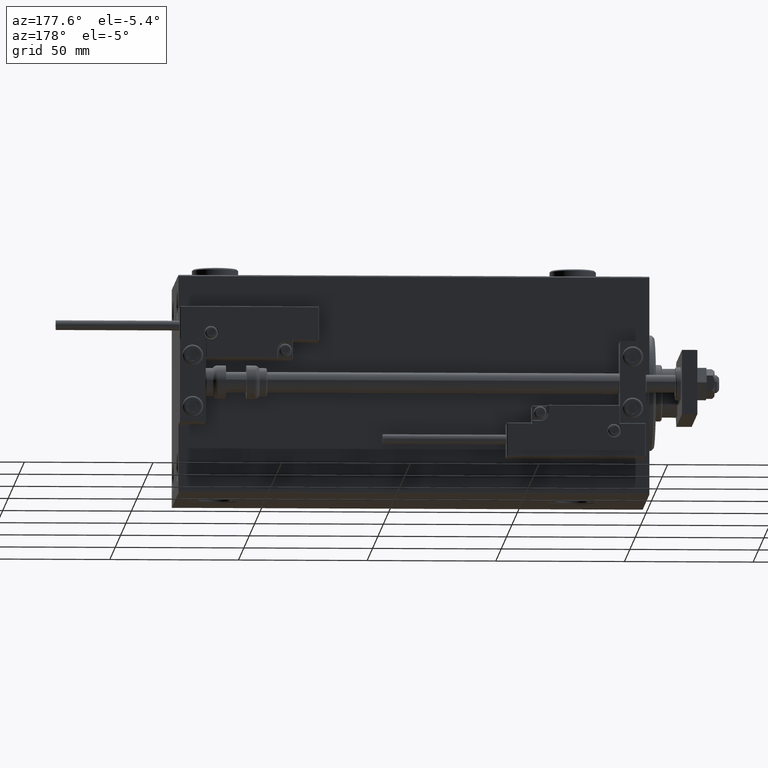
[diagram: clean part render]
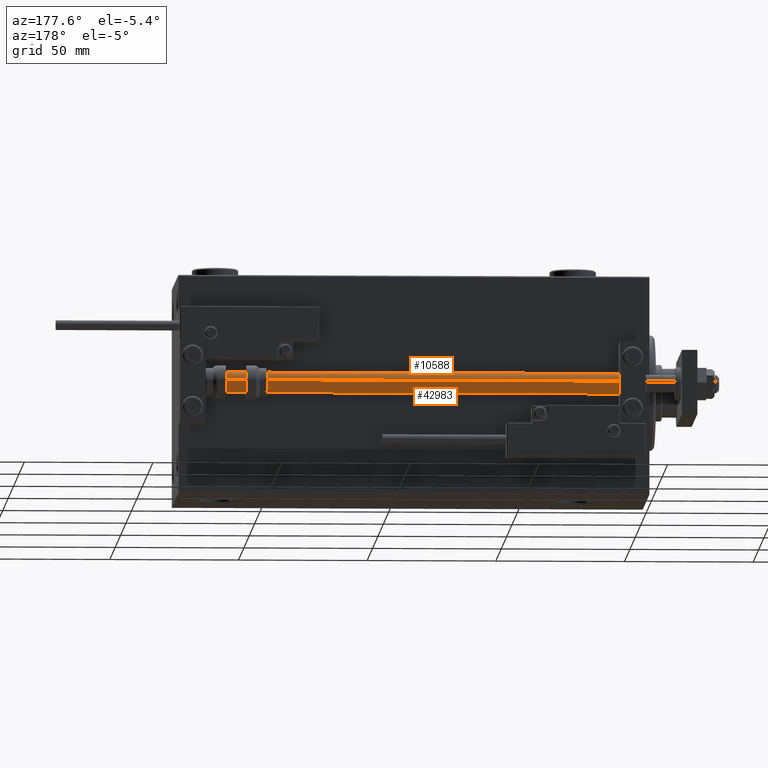
[diagram: same view with one multi-face feature highlighted, each face labeled with its STEP entity id]
A machine part, auxiliary view. The highlighted faces form ONE feature: a constant-radius fillet chain: 2 tangent blend faces with common blend radius 4 mm. The faces share edges in the B-rep.
Their STEP definitions:
[1] entity #42983 (Cylinder):
#3770 = DIRECTION ( 'NONE',  ( -1.000000000000000000, 0.000000000000000000, 0.000000000000000000 ) ) ;
#4261 = DIRECTION ( 'NONE',  ( 0.000000000000000000, 0.000000000000000000, 1.000000000000000000 ) ) ;
#4809 = DIRECTION ( 'NONE',  ( -0.000000000000000000, -0.000000000000000000, -1.000000000000000000 ) ) ;
#8488 = CARTESIAN_POINT ( 'NONE',  ( 4.000000000000000000, 4.898587196589412829E-16, 2.000000000000029310 ) ) ;
#8984 = EDGE_CURVE ( 'NONE', #44692, #36020, #20289, .T. ) ;
#10331 = CIRCLE ( 'NONE', #45137, 4.000000000000000000 ) ;
#10428 = CARTESIAN_POINT ( 'NONE',  ( -4.000000000000000000, 0.000000000000000000, 2.000000000000029310 ) ) ;
#14915 = LINE ( 'NONE', #31094, #18881 ) ;
#15468 = EDGE_CURVE ( 'NONE', #44692, #29301, #14915, .T. ) ;
#15799 = ORIENTED_EDGE ( 'NONE', *, *, #45083, .T. ) ;
#16457 = ORIENTED_EDGE ( 'NONE', *, *, #8984, .F. ) ;
#17979 = ORIENTED_EDGE ( 'NONE', *, *, #15468, .T. ) ;
#18557 = DIRECTION ( 'NONE',  ( 1.000000000000000000, 0.000000000000000000, 0.000000000000000000 ) ) ;
#18881 = VECTOR ( 'NONE', #28148, 1000.000000000000000 ) ;
#20289 = CIRCLE ( 'NONE', #26216, 4.000000000000000000 ) ;
#22492 = CARTESIAN_POINT ( 'NONE',  ( 4.000000000000000000, 4.898587196589412829E-16, 183.0000000000000000 ) ) ;
#23693 = EDGE_LOOP ( 'NONE', ( #39508, #16457, #17979, #15799 ) ) ;
#26216 = AXIS2_PLACEMENT_3D ( 'NONE', #28425, #4261, #52108 ) ;
#26338 = AXIS2_PLACEMENT_3D ( 'NONE', #41197, #4809, #3770 ) ;
#28148 = DIRECTION ( 'NONE',  ( -0.000000000000000000, -0.000000000000000000, -1.000000000000000000 ) ) ;
#28425 = CARTESIAN_POINT ( 'NONE',  ( 0.000000000000000000, 0.000000000000000000, 183.0000000000000000 ) ) ;
#28976 = FACE_OUTER_BOUND ( 'NONE', #23693, .T. ) ;
#29301 = VERTEX_POINT ( 'NONE', #10428 ) ;
#31094 = CARTESIAN_POINT ( 'NONE',  ( -4.000000000000000000, 0.000000000000000000, 183.0000000000000000 ) ) ;
#33489 = VERTEX_POINT ( 'NONE', #8488 ) ;
#34971 = DIRECTION ( 'NONE',  ( -0.000000000000000000, -0.000000000000000000, -1.000000000000000000 ) ) ;
#36020 = VERTEX_POINT ( 'NONE', #51689 ) ;
#36427 = CYLINDRICAL_SURFACE ( 'NONE', #26338, 4.000000000000000000 ) ;
#38734 = CARTESIAN_POINT ( 'NONE',  ( 0.000000000000000000, 0.000000000000000000, 2.000000000000029310 ) ) ;
#39508 = ORIENTED_EDGE ( 'NONE', *, *, #42185, .F. ) ;
#41197 = CARTESIAN_POINT ( 'NONE',  ( 0.000000000000000000, 0.000000000000000000, 183.0000000000000000 ) ) ;
#42185 = EDGE_CURVE ( 'NONE', #36020, #33489, #42690, .T. ) ;
#42690 = LINE ( 'NONE', #22492, #49244 ) ;
#42983 = ADVANCED_FACE ( 'NONE', ( #28976 ), #36427, .T. ) ;
#44692 = VERTEX_POINT ( 'NONE', #49018 ) ;
#45083 = EDGE_CURVE ( 'NONE', #29301, #33489, #10331, .T. ) ;
#45137 = AXIS2_PLACEMENT_3D ( 'NONE', #38734, #46216, #18557 ) ;
#46216 = DIRECTION ( 'NONE',  ( -0.000000000000000000, -0.000000000000000000, 1.000000000000000000 ) ) ;
#49018 = CARTESIAN_POINT ( 'NONE',  ( -4.000000000000000000, 0.000000000000000000, 183.0000000000000000 ) ) ;
#49244 = VECTOR ( 'NONE', #34971, 1000.000000000000000 ) ;
#51689 = CARTESIAN_POINT ( 'NONE',  ( 4.000000000000000000, 4.898587196589412829E-16, 183.0000000000000000 ) ) ;
#52108 = DIRECTION ( 'NONE',  ( 1.000000000000000000, 0.000000000000000000, 0.000000000000000000 ) ) ;
[2] entity #10588 (Cylinder):
#454 = EDGE_CURVE ( 'NONE', #36020, #44692, #38722, .T. ) ;
#2329 = DIRECTION ( 'NONE',  ( -0.000000000000000000, -0.000000000000000000, 1.000000000000000000 ) ) ;
#2453 = DIRECTION ( 'NONE',  ( 0.000000000000000000, 0.000000000000000000, 1.000000000000000000 ) ) ;
#6035 = DIRECTION ( 'NONE',  ( -0.000000000000000000, -0.000000000000000000, -1.000000000000000000 ) ) ;
#8488 = CARTESIAN_POINT ( 'NONE',  ( 4.000000000000000000, 4.898587196589412829E-16, 2.000000000000029310 ) ) ;
#10428 = CARTESIAN_POINT ( 'NONE',  ( -4.000000000000000000, 0.000000000000000000, 2.000000000000029310 ) ) ;
#10588 = ADVANCED_FACE ( 'NONE', ( #34454 ), #38697, .T. ) ;
#13742 = ORIENTED_EDGE ( 'NONE', *, *, #454, .F. ) ;
#14915 = LINE ( 'NONE', #31094, #18881 ) ;
#15468 = EDGE_CURVE ( 'NONE', #44692, #29301, #14915, .T. ) ;
#15482 = DIRECTION ( 'NONE',  ( 1.000000000000000000, 0.000000000000000000, 0.000000000000000000 ) ) ;
#16154 = ORIENTED_EDGE ( 'NONE', *, *, #43410, .T. ) ;
#17542 = AXIS2_PLACEMENT_3D ( 'NONE', #34862, #2453, #15482 ) ;
#18517 = DIRECTION ( 'NONE',  ( -1.000000000000000000, 0.000000000000000000, 0.000000000000000000 ) ) ;
#18538 = EDGE_LOOP ( 'NONE', ( #13742, #40755, #16154, #23205 ) ) ;
#18540 = DIRECTION ( 'NONE',  ( 1.000000000000000000, 0.000000000000000000, 0.000000000000000000 ) ) ;
#18881 = VECTOR ( 'NONE', #28148, 1000.000000000000000 ) ;
#22492 = CARTESIAN_POINT ( 'NONE',  ( 4.000000000000000000, 4.898587196589412829E-16, 183.0000000000000000 ) ) ;
#23205 = ORIENTED_EDGE ( 'NONE', *, *, #15468, .F. ) ;
#27252 = CARTESIAN_POINT ( 'NONE',  ( 0.000000000000000000, 0.000000000000000000, 183.0000000000000000 ) ) ;
#28148 = DIRECTION ( 'NONE',  ( -0.000000000000000000, -0.000000000000000000, -1.000000000000000000 ) ) ;
#29301 = VERTEX_POINT ( 'NONE', #10428 ) ;
#31094 = CARTESIAN_POINT ( 'NONE',  ( -4.000000000000000000, 0.000000000000000000, 183.0000000000000000 ) ) ;
#33489 = VERTEX_POINT ( 'NONE', #8488 ) ;
#34454 = FACE_OUTER_BOUND ( 'NONE', #18538, .T. ) ;
#34862 = CARTESIAN_POINT ( 'NONE',  ( 0.000000000000000000, 0.000000000000000000, 183.0000000000000000 ) ) ;
#34971 = DIRECTION ( 'NONE',  ( -0.000000000000000000, -0.000000000000000000, -1.000000000000000000 ) ) ;
#35677 = AXIS2_PLACEMENT_3D ( 'NONE', #39768, #2329, #18540 ) ;
#36020 = VERTEX_POINT ( 'NONE', #51689 ) ;
#38697 = CYLINDRICAL_SURFACE ( 'NONE', #49233, 4.000000000000000000 ) ;
#38722 = CIRCLE ( 'NONE', #17542, 4.000000000000000000 ) ;
#39768 = CARTESIAN_POINT ( 'NONE',  ( 0.000000000000000000, 0.000000000000000000, 2.000000000000029310 ) ) ;
#40755 = ORIENTED_EDGE ( 'NONE', *, *, #42185, .T. ) ;
#40798 = CIRCLE ( 'NONE', #35677, 4.000000000000000000 ) ;
#42185 = EDGE_CURVE ( 'NONE', #36020, #33489, #42690, .T. ) ;
#42690 = LINE ( 'NONE', #22492, #49244 ) ;
#43410 = EDGE_CURVE ( 'NONE', #33489, #29301, #40798, .T. ) ;
#44692 = VERTEX_POINT ( 'NONE', #49018 ) ;
#49018 = CARTESIAN_POINT ( 'NONE',  ( -4.000000000000000000, 0.000000000000000000, 183.0000000000000000 ) ) ;
#49233 = AXIS2_PLACEMENT_3D ( 'NONE', #27252, #6035, #18517 ) ;
#49244 = VECTOR ( 'NONE', #34971, 1000.000000000000000 ) ;
#51689 = CARTESIAN_POINT ( 'NONE',  ( 4.000000000000000000, 4.898587196589412829E-16, 183.0000000000000000 ) ) ;